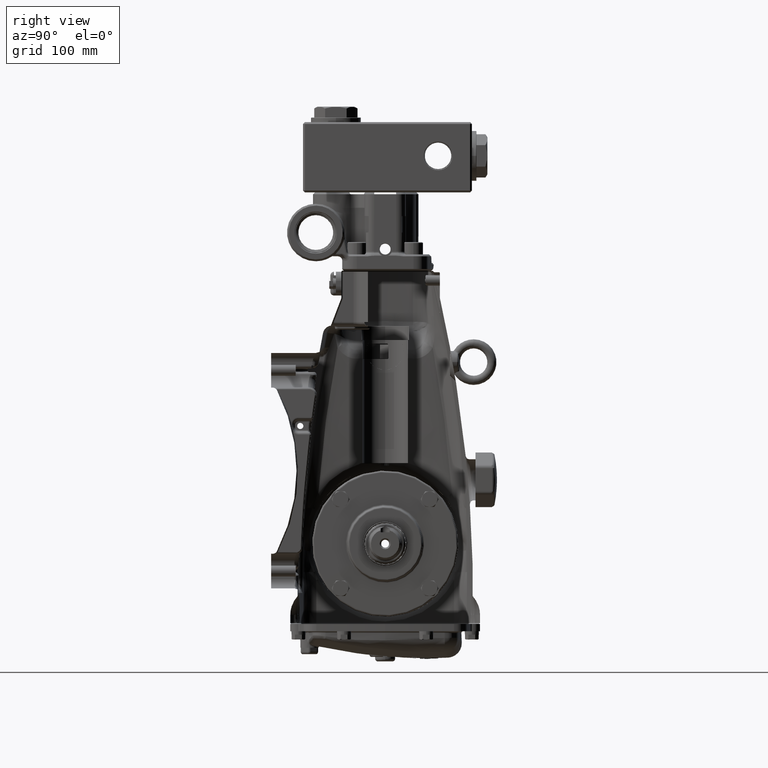
[diagram: clean part render]
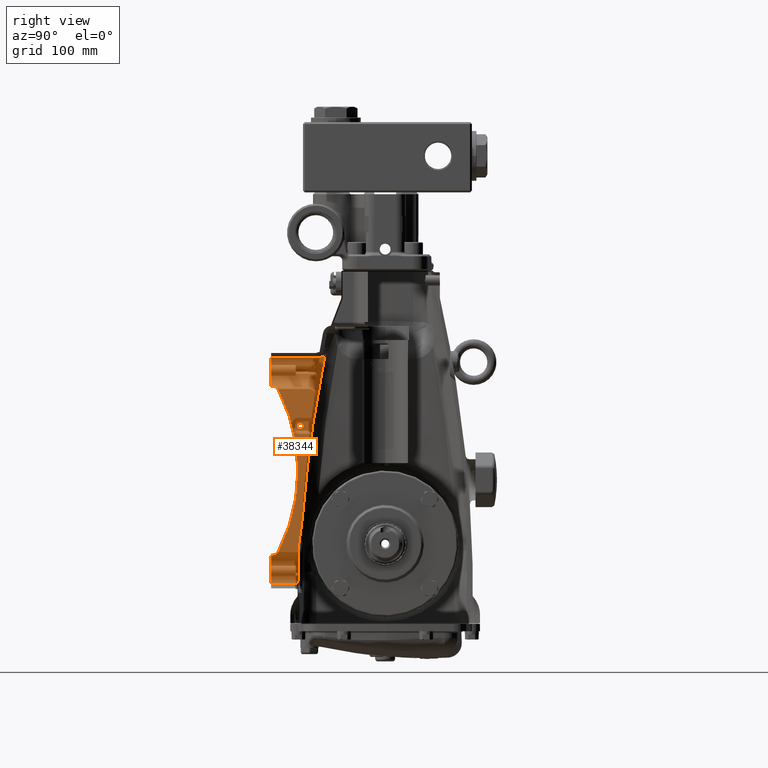
[diagram: same view with one face highlighted and labeled with its STEP entity id]
A machine part, right view. The second image highlights one B-rep face of the part: STEP entity #38344.
In plain terms, the highlighted planar face has unit normal (-1, 0, 0).
Its self-contained STEP definition (entity closure, byte-faithful):
#816 = CARTESIAN_POINT ( 'NONE',  ( 3.503937007874016185, -4.731727712772045180, -0.4684945342514902911 ) ) ;
#1967 = CARTESIAN_POINT ( 'NONE',  ( 3.503937007874016629, -3.605939949937524869, 0.8689799660905869194 ) ) ;
#2323 = B_SPLINE_CURVE_WITH_KNOTS ( 'NONE', 3,
 ( #33951, #69132, #104435, #25297 ),
 .UNSPECIFIED., .F., .F.,
 ( 4, 4 ),
 ( 1.112389315513592667E-16, 0.001178698509222294048 ),
 .UNSPECIFIED. ) ;
#2813 = EDGE_LOOP ( 'NONE', ( #21688, #62674, #80962, #78856, #92776, #38678, #90339, #90117, #103850, #49259, #59656, #21175, #95736 ) ) ;
#3778 = CARTESIAN_POINT ( 'NONE',  ( 3.503937007874016629, -3.700687287697055350, 0.2624621663861315124 ) ) ;
#3973 = CARTESIAN_POINT ( 'NONE',  ( 3.503937007874015297, -4.718454748744501437, 6.760603168207090619 ) ) ;
#4451 = CARTESIAN_POINT ( 'NONE',  ( 3.503937007874016185, -3.306522765691745303, 3.759119057958843158 ) ) ;
#4838 = DIRECTION ( 'NONE',  ( 0.0000000000000000000, 0.0000000000000000000, 1.000000000000000000 ) ) ;
#4967 = EDGE_CURVE ( 'NONE', #89058, #31576, #29283, .T. ) ;
#6978 = DIRECTION ( 'NONE',  ( 0.0000000000000000000, 0.0000000000000000000, 1.000000000000000000 ) ) ;
#7261 = B_SPLINE_CURVE_WITH_KNOTS ( 'NONE', 3,
 ( #21074, #56244, #91573, #12416, #47609, #82837, #3778, #38951, #74109, #109456 ),
 .UNSPECIFIED., .F., .F.,
 ( 4, 2, 2, 2, 4 ),
 ( 0.0000000000000000000, 0.004517314599524206026, 0.009034629199048412052, 0.01355194379857261808, 0.01806925839809682410 ),
 .UNSPECIFIED. ) ;
#9456 = CARTESIAN_POINT ( 'NONE',  ( 3.503937007874016629, -4.802289649237382996, -0.4930266413083278509 ) ) ;
#10613 = CARTESIAN_POINT ( 'NONE',  ( 3.503937007874016185, -3.539042637811502967, 1.423809164309841169 ) ) ;
#12416 = CARTESIAN_POINT ( 'NONE',  ( 3.503937007874016185, -3.657110209450497695, 0.4957286256059629803 ) ) ;
#12617 = CARTESIAN_POINT ( 'NONE',  ( 3.503937007874016185, -4.648289820371868331, 6.704465273160414185 ) ) ;
#13088 = CARTESIAN_POINT ( 'NONE',  ( 3.503937007874017517, -2.998424493625548859, 5.942879939162322600 ) ) ;
#13175 = CARTESIAN_POINT ( 'NONE',  ( 3.503937007874016185, -4.921259842519685179, 6.806381922957635666 ) ) ;
#13377 = CARTESIAN_POINT ( 'NONE',  ( 3.503937007874016185, -2.645218235793530770, 8.088035875519713258 ) ) ;
#16099 = DIRECTION ( 'NONE',  ( 0.0000000000000000000, -1.000000000000000000, 0.0000000000000000000 ) ) ;
#17038 = CARTESIAN_POINT ( 'NONE',  ( 3.503937007874017961, -3.762235296337156143, -1.147694889182239830 ) ) ;
#17618 = VECTOR ( 'NONE', #6978, 39.37007874015748143 ) ;
#18092 = CARTESIAN_POINT ( 'NONE',  ( 3.503937007874016185, -4.861449618656916272, -0.5020681062540734985 ) ) ;
#19428 = EDGE_CURVE ( 'NONE', #31576, #89058, #89666, .T. ) ;
#21074 = CARTESIAN_POINT ( 'NONE',  ( 3.503937007874016185, -3.620702961579017831, 0.7300533870954822868 ) ) ;
#21175 = ORIENTED_EDGE ( 'NONE', *, *, #92091, .F. ) ;
#21688 = ORIENTED_EDGE ( 'NONE', *, *, #37728, .F. ) ;
#21741 = CARTESIAN_POINT ( 'NONE',  ( 3.503937007874016185, -2.602107652601760357, 8.112767743021466416 ) ) ;
#21832 = CARTESIAN_POINT ( 'NONE',  ( 3.503937007874016629, -4.861449618656907390, 6.801280704679270706 ) ) ;
#22018 = CARTESIAN_POINT ( 'NONE',  ( 3.503937007874016185, -2.785278480736270268, 8.038609735109444543 ) ) ;
#23868 = B_SPLINE_CURVE_WITH_KNOTS ( 'NONE', 3,
 ( #89757, #10613, #45811, #81004, #1967, #37144 ),
 .UNSPECIFIED., .F., .F.,
 ( 4, 2, 4 ),
 ( 0.0000000000000000000, 0.01064564899915730091, 0.02129129799831460182 ),
 .UNSPECIFIED. ) ;
#24716 = DIRECTION ( 'NONE',  ( -1.000000000000000000, 0.0000000000000000000, 0.0000000000000000000 ) ) ;
#25084 = VERTEX_POINT ( 'NONE', #96820 ) ;
#25297 = CARTESIAN_POINT ( 'NONE',  ( 3.503937007874016185, -3.814294700447625974, -1.732283464566929387 ) ) ;
#25514 = CARTESIAN_POINT ( 'NONE',  ( 3.503937007874016185, -3.724581833894700988, 0.02629046851337778212 ) ) ;
#26701 = DIRECTION ( 'NONE',  ( 0.0000000000000000000, 0.0000000000000000000, 1.000000000000000000 ) ) ;
#26754 = CARTESIAN_POINT ( 'NONE',  ( 3.503937007874016185, -4.921259842519685179, -0.5071693245324403465 ) ) ;
#27333 = CARTESIAN_POINT ( 'NONE',  ( 3.503937007874016185, -4.648289820371906522, -0.4052526747352560577 ) ) ;
#27558 = VERTEX_POINT ( 'NONE', #53509 ) ;
#29090 = EDGE_CURVE ( 'NONE', #33099, #112496, #2323, .T. ) ;
#29168 = CARTESIAN_POINT ( 'NONE',  ( 3.503937007874016185, -3.661417322834644494, 5.078740157480314821 ) ) ;
#29283 = CIRCLE ( 'NONE', #93852, 0.1328740157480310657 ) ;
#29436 = DIRECTION ( 'NONE',  ( 0.0000000000000000000, 0.0000000000000000000, -1.000000000000000000 ) ) ;
#29647 = B_SPLINE_CURVE_WITH_KNOTS ( 'NONE', 3,
 ( #60867, #96193, #17038, #52218 ),
 .UNSPECIFIED., .F., .F.,
 ( 4, 4 ),
 ( 0.0000000000000000000, 0.04475000068568665140 ),
 .UNSPECIFIED. ) ;
#29712 = EDGE_CURVE ( 'NONE', #71453, #27558, #37208, .T. ) ;
#29938 = CARTESIAN_POINT ( 'NONE',  ( 3.503937007874016185, -4.616205892322081006, 6.653850641240728336 ) ) ;
#30488 = CARTESIAN_POINT ( 'NONE',  ( 3.503937007874017517, -4.802289649237365232, 6.792239239733524947 ) ) ;
#30528 = LINE ( 'NONE', #65715, #33566 ) ;
#31576 = VERTEX_POINT ( 'NONE', #112657 ) ;
#31790 = EDGE_CURVE ( 'NONE', #27558, #25084, #59583, .T. ) ;
#32375 = AXIS2_PLACEMENT_3D ( 'NONE', #103862, #24716, #59884 ) ;
#33099 = VERTEX_POINT ( 'NONE', #50530 ) ;
#33365 = FACE_OUTER_BOUND ( 'NONE', #2813, .T. ) ;
#33566 = VECTOR ( 'NONE', #101032, 39.37007874015748143 ) ;
#33951 = CARTESIAN_POINT ( 'NONE',  ( 3.503937007874017961, -3.767968163267040982, -1.734988650703749968 ) ) ;
#35986 = CARTESIAN_POINT ( 'NONE',  ( 3.503937007874016629, -4.718454748744495220, -0.4613905697819655760 ) ) ;
#37144 = CARTESIAN_POINT ( 'NONE',  ( 3.503937007874016185, -3.620702961579017831, 0.7300533870954822868 ) ) ;
#37208 = CIRCLE ( 'NONE', #101765, 7.618110236220474007 ) ;
#37728 = EDGE_CURVE ( 'NONE', #71627, #33099, #29647, .T. ) ;
#38344 = ADVANCED_FACE ( 'NONE', ( #112551, #33365 ), #68552, .F. ) ;
#38678 = ORIENTED_EDGE ( 'NONE', *, *, #94699, .F. ) ;
#38951 = CARTESIAN_POINT ( 'NONE',  ( 3.503937007874016185, -3.716522745441340092, 0.1449502326499750304 ) ) ;
#39158 = CARTESIAN_POINT ( 'NONE',  ( 3.503937007874016629, -4.731727712772016758, 6.767707132676672899 ) ) ;
#39640 = CARTESIAN_POINT ( 'NONE',  ( 3.503937007874016185, -3.428972750327167862, 2.662269397423764339 ) ) ;
#39795 = AXIS2_PLACEMENT_3D ( 'NONE', #29168, #64344, #99647 ) ;
#40801 = CARTESIAN_POINT ( 'NONE',  ( 3.503937007874016185, -4.921259842519685179, -1.732283464566929387 ) ) ;
#40815 = EDGE_CURVE ( 'NONE', #25084, #105277, #70535, .T. ) ;
#44650 = CARTESIAN_POINT ( 'NONE',  ( 3.503937007874016185, -4.773521109645815663, -0.4853415663753637421 ) ) ;
#44665 = CARTESIAN_POINT ( 'NONE',  ( 3.503937007874016185, -3.814294700447625974, -1.732283464566929387 ) ) ;
#45811 = CARTESIAN_POINT ( 'NONE',  ( 3.503937007874017517, -3.555432535987748999, 1.285064474769479270 ) ) ;
#47609 = CARTESIAN_POINT ( 'NONE',  ( 3.503937007874016629, -3.668745550523472954, 0.4375213966053295156 ) ) ;
#47805 = CARTESIAN_POINT ( 'NONE',  ( 3.503937007874016629, -4.681586027986947229, 6.735215849582378844 ) ) ;
#47942 = CARTESIAN_POINT ( 'NONE',  ( 3.503937007874016185, -2.602107652601760357, 8.112767743021466416 ) ) ;
#48280 = CARTESIAN_POINT ( 'NONE',  ( 3.503937007874016629, -3.083357760850589102, 5.398183425227456311 ) ) ;
#48575 = CARTESIAN_POINT ( 'NONE',  ( 3.503937007874017517, -2.623297997128170245, 8.099642149567246818 ) ) ;
#48639 = VERTEX_POINT ( 'NONE', #40801 ) ;
#48674 = CARTESIAN_POINT ( 'NONE',  ( 3.503937007874016185, -3.661417322834644494, 5.078740157480314821 ) ) ;
#49259 = ORIENTED_EDGE ( 'NONE', *, *, #53677, .F. ) ;
#49769 = CARTESIAN_POINT ( 'NONE',  ( 3.503937007874016185, -4.616205892322111204, -0.3546380428155870845 ) ) ;
#50530 = CARTESIAN_POINT ( 'NONE',  ( 3.503937007874017961, -3.767968163267040982, -1.734988650703749968 ) ) ;
#50803 = LINE ( 'NONE', #86089, #17618 ) ;
#51078 = EDGE_CURVE ( 'NONE', #48639, #80581, #50803, .T. ) ;
#52218 = CARTESIAN_POINT ( 'NONE',  ( 3.503937007874017961, -3.767968163267040982, -1.734988650703749968 ) ) ;
#53272 = CARTESIAN_POINT ( 'NONE',  ( 3.503937007874016629, -4.846505542951875078, -0.5003943745820219613 ) ) ;
#53509 = CARTESIAN_POINT ( 'NONE',  ( 3.503937007874016185, -4.616205892322081006, 6.653850641240728336 ) ) ;
#53677 = EDGE_CURVE ( 'NONE', #80581, #71453, #59282, .T. ) ;
#54141 = CARTESIAN_POINT ( 'NONE',  ( 3.503937007874016185, -4.921259842519685179, -0.5071693245324403465 ) ) ;
#56244 = CARTESIAN_POINT ( 'NONE',  ( 3.503937007874016185, -3.626972507503635423, 0.6710541403082179723 ) ) ;
#56912 = CARTESIAN_POINT ( 'NONE',  ( 3.503937007874016185, -2.711457084039380128, 7.571910866688702946 ) ) ;
#57003 = CARTESIAN_POINT ( 'NONE',  ( 3.503937007874015741, -4.891327400050258234, 6.804131530227121694 ) ) ;
#57203 = CARTESIAN_POINT ( 'NONE',  ( 3.503937007874016629, -2.714031542117705698, 8.059236136507291093 ) ) ;
#59282 = B_SPLINE_CURVE_WITH_KNOTS ( 'NONE', 3,
 ( #26754, #61931, #97257, #18092, #53272, #88583, #9456, #44650, #79823, #816, #35986, #71148, #106473, #27333, #62506, #97820 ),
 .UNSPECIFIED., .F., .F.,
 ( 4, 2, 2, 2, 2, 2, 2, 4 ),
 ( 4.458779292305356437E-16, 0.001143502835804588533, 0.002287005671608731243, 0.003430508507412873952, 0.004574011343217016662, 0.005717514179021158938, 0.006861017014825302081, 0.009148022686433587500 ),
 .UNSPECIFIED. ) ;
#59583 = B_SPLINE_CURVE_WITH_KNOTS ( 'NONE', 3,
 ( #29938, #91777, #12617, #47805, #83038, #3973, #39158, #74309, #109650, #30488, #65678, #100995, #21832, #57003, #92333, #13175 ),
 .UNSPECIFIED., .F., .F.,
 ( 4, 2, 2, 2, 2, 2, 2, 4 ),
 ( 1.387778780781445676E-17, 0.002272437004862734328, 0.003408655507294066581, 0.004544874009725399268, 0.005681092512156730653, 0.006817311014588062906, 0.007953529517019395159, 0.009089748019450725677 ),
 .UNSPECIFIED. ) ;
#59656 = ORIENTED_EDGE ( 'NONE', *, *, #51078, .F. ) ;
#59884 = DIRECTION ( 'NONE',  ( 0.0000000000000000000, 0.0000000000000000000, -1.000000000000000000 ) ) ;
#59913 = LINE ( 'NONE', #95237, #96036 ) ;
#60867 = CARTESIAN_POINT ( 'NONE',  ( 3.503937007874016185, -3.724581833894700988, 0.02629046851337778212 ) ) ;
#61316 = EDGE_LOOP ( 'NONE', ( #99838, #85303 ) ) ;
#61931 = CARTESIAN_POINT ( 'NONE',  ( 3.503937007874016185, -4.906289116070752243, -0.5060936163710919589 ) ) ;
#62064 = EDGE_CURVE ( 'NONE', #87909, #66223, #23868, .T. ) ;
#62506 = CARTESIAN_POINT ( 'NONE',  ( 3.503937007874016629, -4.630124390028468540, -0.3815051813470399789 ) ) ;
#62674 = ORIENTED_EDGE ( 'NONE', *, *, #86315, .F. ) ;
#64344 = DIRECTION ( 'NONE',  ( -1.000000000000000000, -0.0000000000000000000, -0.0000000000000000000 ) ) ;
#65508 = VERTEX_POINT ( 'NONE', #77670 ) ;
#65678 = CARTESIAN_POINT ( 'NONE',  ( 3.503937007874016629, -4.816925024654141296, 6.795099193782635716 ) ) ;
#65715 = CARTESIAN_POINT ( 'NONE',  ( 3.503937007874016185, 19685.03937007874265, 8.031496062992124152 ) ) ;
#65867 = CARTESIAN_POINT ( 'NONE',  ( 3.503937007874016185, -2.883808963174094409, 8.031496062992124152 ) ) ;
#66223 = VERTEX_POINT ( 'NONE', #87175 ) ;
#68552 = PLANE ( 'NONE',  #32375 ) ;
#69132 = CARTESIAN_POINT ( 'NONE',  ( 3.503937007874016185, -3.783357683791080728, -1.733185140188020057 ) ) ;
#70535 = LINE ( 'NONE', #105847, #93589 ) ;
#71148 = CARTESIAN_POINT ( 'NONE',  ( 3.503937007874016629, -4.693415663590924325, -0.4451561754833937012 ) ) ;
#71453 = VERTEX_POINT ( 'NONE', #49769 ) ;
#71627 = VERTEX_POINT ( 'NONE', #25514 ) ;
#71780 = B_SPLINE_CURVE_WITH_KNOTS ( 'NONE', 3,
 ( #21741, #56912, #92243, #13088, #48280, #83520, #4451, #39640, #74778, #110137 ),
 .UNSPECIFIED., .F., .F.,
 ( 4, 2, 2, 2, 4 ),
 ( 0.002992782186349684202, 0.04500016623403916421, 0.08700755028172864336, 0.1290149343294180739, 0.1710223183771075184 ),
 .UNSPECIFIED. ) ;
#72841 = EDGE_CURVE ( 'NONE', #65508, #93000, #88696, .T. ) ;
#73258 = CARTESIAN_POINT ( 'NONE',  ( 3.503937007874016185, -11.38051481212837679, 3.149606299212599048 ) ) ;
#74109 = CARTESIAN_POINT ( 'NONE',  ( 3.503937007874016629, -3.722227576016405859, 0.08586763109629419466 ) ) ;
#74309 = CARTESIAN_POINT ( 'NONE',  ( 3.503937007874017517, -4.759386448638580625, 6.779734901064412789 ) ) ;
#74778 = CARTESIAN_POINT ( 'NONE',  ( 3.503937007874016185, -3.482254139389418857, 2.113072292627703241 ) ) ;
#77670 = CARTESIAN_POINT ( 'NONE',  ( 3.503937007874016185, -2.883808963174094409, 8.031496062992124152 ) ) ;
#78856 = ORIENTED_EDGE ( 'NONE', *, *, #107774, .F. ) ;
#79823 = CARTESIAN_POINT ( 'NONE',  ( 3.503937007874016629, -4.759386448638603717, -0.4805223026392264063 ) ) ;
#80581 = VERTEX_POINT ( 'NONE', #54141 ) ;
#80962 = ORIENTED_EDGE ( 'NONE', *, *, #62064, .F. ) ;
#81004 = CARTESIAN_POINT ( 'NONE',  ( 3.503937007874016185, -3.588905748136939078, 1.007652621083721778 ) ) ;
#82837 = CARTESIAN_POINT ( 'NONE',  ( 3.503937007874016185, -3.690539410082489535, 0.3208889523179280778 ) ) ;
#83038 = CARTESIAN_POINT ( 'NONE',  ( 3.503937007874016185, -4.693415663590920772, 6.744368773908521852 ) ) ;
#83520 = CARTESIAN_POINT ( 'NONE',  ( 3.503937007874016185, -3.237408030805594361, 4.306303162944032259 ) ) ;
#83809 = CARTESIAN_POINT ( 'NONE',  ( 3.503937007874016185, -2.602107652601760357, 8.112767743021466416 ) ) ;
#83910 = DIRECTION ( 'NONE',  ( -1.000000000000000000, -0.0000000000000000000, -0.0000000000000000000 ) ) ;
#85303 = ORIENTED_EDGE ( 'NONE', *, *, #4967, .T. ) ;
#86089 = CARTESIAN_POINT ( 'NONE',  ( 3.503937007874016185, -4.921259842519685179, -0.4330708661417321248 ) ) ;
#86315 = EDGE_CURVE ( 'NONE', #66223, #71627, #7261, .T. ) ;
#87175 = CARTESIAN_POINT ( 'NONE',  ( 3.503937007874016185, -3.620702961579017831, 0.7300533870954822868 ) ) ;
#87909 = VERTEX_POINT ( 'NONE', #106266 ) ;
#88583 = CARTESIAN_POINT ( 'NONE',  ( 3.503937007874016185, -4.816925024654156395, -0.4958865953574389529 ) ) ;
#88696 = B_SPLINE_CURVE_WITH_KNOTS ( 'NONE', 3,
 ( #65867, #101182, #22018, #57203, #92525, #13377, #48575, #83809 ),
 .UNSPECIFIED., .F., .F.,
 ( 4, 2, 2, 4 ),
 ( 0.0000000000000000000, 0.003745135131311566352, 0.005617702696967380969, 0.007490270262623196021 ),
 .UNSPECIFIED. ) ;
#89058 = VERTEX_POINT ( 'NONE', #114301 ) ;
#89666 = CIRCLE ( 'NONE', #39795, 0.1328740157480310657 ) ;
#89757 = CARTESIAN_POINT ( 'NONE',  ( 3.503937007874016185, -3.527566181172348436, 1.563103187305856290 ) ) ;
#90117 = ORIENTED_EDGE ( 'NONE', *, *, #31790, .F. ) ;
#90339 = ORIENTED_EDGE ( 'NONE', *, *, #40815, .F. ) ;
#91573 = CARTESIAN_POINT ( 'NONE',  ( 3.503937007874017517, -3.636183932993420687, 0.6124891294314417367 ) ) ;
#91777 = CARTESIAN_POINT ( 'NONE',  ( 3.503937007874016185, -4.630124390028430348, 6.680717779772191278 ) ) ;
#92091 = EDGE_CURVE ( 'NONE', #112496, #48639, #59913, .T. ) ;
#92243 = CARTESIAN_POINT ( 'NONE',  ( 3.503937007874016629, -2.812472069077942116, 7.029743331830385245 ) ) ;
#92333 = CARTESIAN_POINT ( 'NONE',  ( 3.503937007874016185, -4.906289116070731815, 6.805306214796285502 ) ) ;
#92525 = CARTESIAN_POINT ( 'NONE',  ( 3.503937007874016629, -2.690511795128365691, 8.067848006717895259 ) ) ;
#92776 = ORIENTED_EDGE ( 'NONE', *, *, #72841, .F. ) ;
#93000 = VERTEX_POINT ( 'NONE', #47942 ) ;
#93589 = VECTOR ( 'NONE', #26701, 39.37007874015748143 ) ;
#93852 = AXIS2_PLACEMENT_3D ( 'NONE', #48674, #83910, #4838 ) ;
#94699 = EDGE_CURVE ( 'NONE', #105277, #65508, #30528, .T. ) ;
#95237 = CARTESIAN_POINT ( 'NONE',  ( 3.503937007874016185, 19685.03937007874265, -1.732283464566929387 ) ) ;
#95736 = ORIENTED_EDGE ( 'NONE', *, *, #29090, .F. ) ;
#96036 = VECTOR ( 'NONE', #16099, 39.37007874015748143 ) ;
#96193 = CARTESIAN_POINT ( 'NONE',  ( 3.503937007874016185, -3.747773536627886148, -0.5606018413933600009 ) ) ;
#96599 = CARTESIAN_POINT ( 'NONE',  ( 3.503937007874016185, -4.921259842519685179, 8.031496062992124152 ) ) ;
#96820 = CARTESIAN_POINT ( 'NONE',  ( 3.503937007874016185, -4.921259842519685179, 6.806381922957635666 ) ) ;
#97257 = CARTESIAN_POINT ( 'NONE',  ( 3.503937007874017517, -4.891327400050264451, -0.5049189318019252637 ) ) ;
#97820 = CARTESIAN_POINT ( 'NONE',  ( 3.503937007874016185, -4.616205892322111204, -0.3546380428155870845 ) ) ;
#99647 = DIRECTION ( 'NONE',  ( 0.0000000000000000000, 0.0000000000000000000, 1.000000000000000000 ) ) ;
#99838 = ORIENTED_EDGE ( 'NONE', *, *, #19428, .T. ) ;
#100995 = CARTESIAN_POINT ( 'NONE',  ( 3.503937007874015741, -4.846505542951862644, 6.799606973007217725 ) ) ;
#101032 = DIRECTION ( 'NONE',  ( -0.0000000000000000000, 1.000000000000000000, -0.0000000000000000000 ) ) ;
#101182 = CARTESIAN_POINT ( 'NONE',  ( 3.503937007874016629, -2.833927097246108584, 8.031496062992127705 ) ) ;
#101765 = AXIS2_PLACEMENT_3D ( 'NONE', #73258, #108588, #29436 ) ;
#103850 = ORIENTED_EDGE ( 'NONE', *, *, #29712, .F. ) ;
#103862 = CARTESIAN_POINT ( 'NONE',  ( 3.503937007874016185, 19685.03937007874265, -0.4330708661417321248 ) ) ;
#104435 = CARTESIAN_POINT ( 'NONE',  ( 3.503937007874016185, -3.798799865951477450, -1.732283464566927389 ) ) ;
#105277 = VERTEX_POINT ( 'NONE', #96599 ) ;
#105847 = CARTESIAN_POINT ( 'NONE',  ( 3.503937007874016185, -4.921259842519685179, -0.4330708661417321248 ) ) ;
#106266 = CARTESIAN_POINT ( 'NONE',  ( 3.503937007874016185, -3.527566181172348436, 1.563103187305856290 ) ) ;
#106473 = CARTESIAN_POINT ( 'NONE',  ( 3.503937007874016629, -4.681586027986985421, -0.4360032511572066172 ) ) ;
#107774 = EDGE_CURVE ( 'NONE', #93000, #87909, #71780, .T. ) ;
#108588 = DIRECTION ( 'NONE',  ( 1.000000000000000000, -0.0000000000000000000, -0.0000000000000000000 ) ) ;
#109456 = CARTESIAN_POINT ( 'NONE',  ( 3.503937007874016185, -3.724581833894700988, 0.02629046851337778212 ) ) ;
#109650 = CARTESIAN_POINT ( 'NONE',  ( 3.503937007874016629, -4.773521109645794347, 6.784554164800557174 ) ) ;
#110137 = CARTESIAN_POINT ( 'NONE',  ( 3.503937007874016185, -3.527566181172348436, 1.563103187305856290 ) ) ;
#112496 = VERTEX_POINT ( 'NONE', #44665 ) ;
#112551 = FACE_BOUND ( 'NONE', #61316, .T. ) ;
#112657 = CARTESIAN_POINT ( 'NONE',  ( 3.503937007874016185, -3.661417322834644494, 5.211614173228346303 ) ) ;
#114301 = CARTESIAN_POINT ( 'NONE',  ( 3.503937007874016185, -3.661417322834644494, 4.945866141732284227 ) ) ;